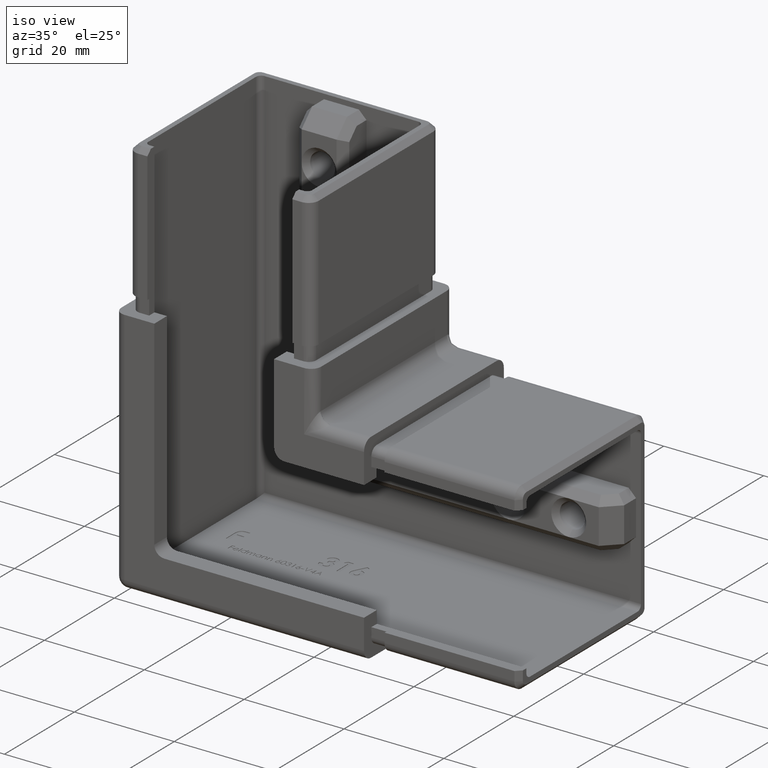
[diagram: clean part render]
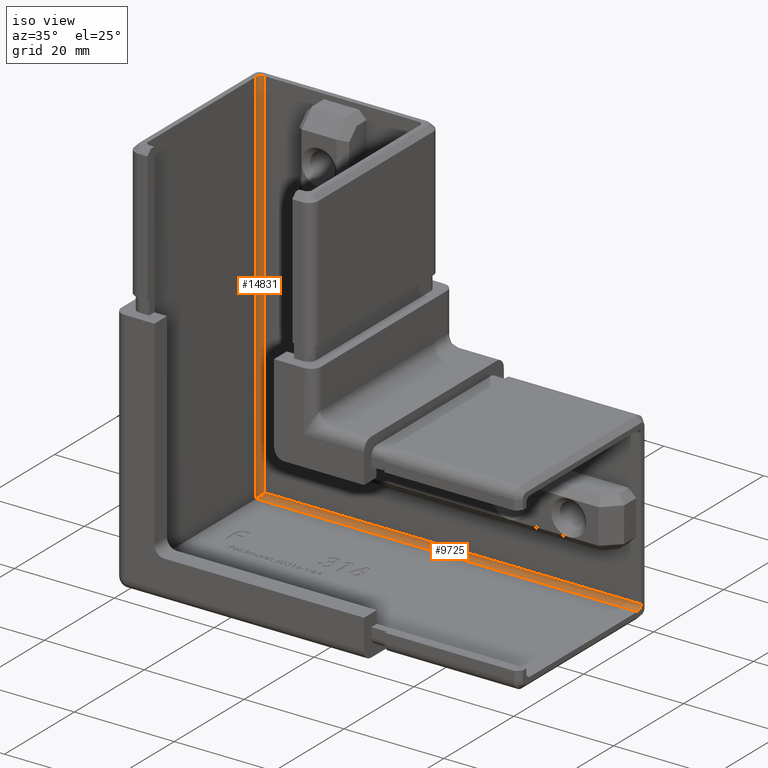
[diagram: same view with one multi-face feature highlighted, each face labeled with its STEP entity id]
A machine part, iso view. The highlighted faces form ONE feature: a constant-radius fillet chain: 2 tangent blend faces with common blend radius 1 mm. The faces share edges in the B-rep.
Their STEP definitions:
[1] entity #9725 (Cylinder):
#227 = EDGE_LOOP ( 'NONE', ( #14699, #7721, #12829, #18084 ) ) ;
#880 = DIRECTION ( 'NONE',  ( 0.000000000000000000, 0.000000000000000000, 1.000000000000000000 ) ) ;
#1062 = CARTESIAN_POINT ( 'NONE',  ( 60.00000000000000000, -4.599999999999998757, -15.40000000000003055 ) ) ;
#1257 = VERTEX_POINT ( 'NONE', #16794 ) ;
#2276 = VERTEX_POINT ( 'NONE', #4150 ) ;
#2345 = CARTESIAN_POINT ( 'NONE',  ( -22.10000000000000142, -3.599999999999999645, -15.39999999999999325 ) ) ;
#3325 = CYLINDRICAL_SURFACE ( 'NONE', #18089, 0.9999999999999991118 ) ;
#4150 = CARTESIAN_POINT ( 'NONE',  ( -16.40000000000000568, -4.600000000000006750, -16.39999999999999858 ) ) ;
#4507 = CARTESIAN_POINT ( 'NONE',  ( -15.39999999999999503, -3.599999999999999645, -15.39999999999998970 ) ) ;
#4647 = DIRECTION ( 'NONE',  ( 1.000000000000000000, 0.000000000000000000, 0.000000000000000000 ) ) ;
#5176 = LINE ( 'NONE', #2345, #9898 ) ;
#5433 = CARTESIAN_POINT ( 'NONE',  ( -16.40000000000000568, -4.014213562373093680, -16.40000000000000924 ) ) ;
#6817 = CARTESIAN_POINT ( 'NONE',  ( -15.98578643762690454, -3.599999999999993872, -15.98578643762690454 ) ) ;
#7070 = DIRECTION ( 'NONE',  ( 1.000000000000000000, 0.000000000000000000, -4.440892098500625176E-16 ) ) ;
#7412 = EDGE_CURVE ( 'NONE', #2276, #10644, #10540, .T. ) ;
#7721 = ORIENTED_EDGE ( 'NONE', *, *, #9861, .T. ) ;
#8018 = VERTEX_POINT ( 'NONE', #8753 ) ;
#8208 = DIRECTION ( 'NONE',  ( 1.000000000000000000, 0.000000000000000000, 0.000000000000000000 ) ) ;
#8753 = CARTESIAN_POINT ( 'NONE',  ( 60.00000000000000000, -4.600000000000006750, -16.40000000000003055 ) ) ;
#9186 = DIRECTION ( 'NONE',  ( 0.000000000000000000, 0.000000000000000000, -1.000000000000000000 ) ) ;
#9443 = DIRECTION ( 'NONE',  ( 1.000000000000000000, 0.000000000000000000, 0.000000000000000000 ) ) ;
#9725 = ADVANCED_FACE ( 'NONE', ( #16476 ), #3325, .F. ) ;
#9861 = EDGE_CURVE ( 'NONE', #2276, #8018, #11306, .T. ) ;
#9898 = VECTOR ( 'NONE', #8208, 1000.000000000000000 ) ;
#10351 = EDGE_CURVE ( 'NONE', #10644, #1257, #5176, .T. ) ;
#10540 =( BOUNDED_CURVE ( )  B_SPLINE_CURVE ( 3, ( #14369, #5433, #6817, #15934 ),
 .UNSPECIFIED., .F., .F. ) 
 B_SPLINE_CURVE_WITH_KNOTS ( ( 4, 4 ),
 ( -7.993605777301127091E-15, 1.570796326794906994 ),
 .UNSPECIFIED. ) 
 CURVE ( )  GEOMETRIC_REPRESENTATION_ITEM ( )  RATIONAL_B_SPLINE_CURVE ( ( 1.000000000000000000, 0.8047378541243606076, 0.8047378541243606076, 1.000000000000000000 ) ) 
 REPRESENTATION_ITEM ( '' )  );
#10644 = VERTEX_POINT ( 'NONE', #4507 ) ;
#11306 = LINE ( 'NONE', #16855, #12012 ) ;
#11480 = AXIS2_PLACEMENT_3D ( 'NONE', #1062, #7070, #880 ) ;
#12012 = VECTOR ( 'NONE', #9443, 1000.000000000000000 ) ;
#12829 = ORIENTED_EDGE ( 'NONE', *, *, #15537, .T. ) ;
#14369 = CARTESIAN_POINT ( 'NONE',  ( -16.40000000000000568, -4.600000000000006750, -16.39999999999999858 ) ) ;
#14699 = ORIENTED_EDGE ( 'NONE', *, *, #7412, .F. ) ;
#15537 = EDGE_CURVE ( 'NONE', #8018, #1257, #16765, .T. ) ;
#15934 = CARTESIAN_POINT ( 'NONE',  ( -15.39999999999999503, -3.599999999999999645, -15.39999999999998970 ) ) ;
#16476 = FACE_OUTER_BOUND ( 'NONE', #227, .T. ) ;
#16765 = CIRCLE ( 'NONE', #11480, 0.9999999999999991118 ) ;
#16794 = CARTESIAN_POINT ( 'NONE',  ( 60.00000000000000000, -3.600000000000000089, -15.40000000000002167 ) ) ;
#16855 = CARTESIAN_POINT ( 'NONE',  ( -22.10000000000000142, -4.600000000000006750, -16.40000000000000213 ) ) ;
#17987 = CARTESIAN_POINT ( 'NONE',  ( -22.10000000000000142, -4.599999999999998757, -15.40000000000000213 ) ) ;
#18084 = ORIENTED_EDGE ( 'NONE', *, *, #10351, .F. ) ;
#18089 = AXIS2_PLACEMENT_3D ( 'NONE', #17987, #4647, #9186 ) ;
[2] entity #14831 (Cylinder):
#307 = DIRECTION ( 'NONE',  ( -1.000000000000000000, 0.000000000000000000, 0.000000000000000000 ) ) ;
#959 = AXIS2_PLACEMENT_3D ( 'NONE', #9246, #16656, #13506 ) ;
#1350 = CARTESIAN_POINT ( 'NONE',  ( -16.40000000000000213, -4.600000000000006750, 30.00000000000000000 ) ) ;
#2276 = VERTEX_POINT ( 'NONE', #4150 ) ;
#2398 = VECTOR ( 'NONE', #14842, 1000.000000000000000 ) ;
#3788 = CIRCLE ( 'NONE', #959, 0.9999999999999991118 ) ;
#3995 = ORIENTED_EDGE ( 'NONE', *, *, #4535, .T. ) ;
#4150 = CARTESIAN_POINT ( 'NONE',  ( -16.40000000000000568, -4.600000000000006750, -16.39999999999999858 ) ) ;
#4507 = CARTESIAN_POINT ( 'NONE',  ( -15.39999999999999503, -3.599999999999999645, -15.39999999999998970 ) ) ;
#4535 = EDGE_CURVE ( 'NONE', #14067, #2276, #11343, .T. ) ;
#5433 = CARTESIAN_POINT ( 'NONE',  ( -16.40000000000000568, -4.014213562373093680, -16.40000000000000924 ) ) ;
#5626 = LINE ( 'NONE', #13066, #11735 ) ;
#6006 = FACE_OUTER_BOUND ( 'NONE', #7468, .T. ) ;
#6817 = CARTESIAN_POINT ( 'NONE',  ( -15.98578643762690454, -3.599999999999993872, -15.98578643762690454 ) ) ;
#6941 = EDGE_CURVE ( 'NONE', #7203, #10644, #5626, .T. ) ;
#7203 = VERTEX_POINT ( 'NONE', #9182 ) ;
#7412 = EDGE_CURVE ( 'NONE', #2276, #10644, #10540, .T. ) ;
#7468 = EDGE_LOOP ( 'NONE', ( #3995, #7647, #9184, #14939 ) ) ;
#7647 = ORIENTED_EDGE ( 'NONE', *, *, #7412, .T. ) ;
#7965 = CARTESIAN_POINT ( 'NONE',  ( -15.40000000000000213, -4.599999999999998757, 30.00000000000000000 ) ) ;
#9182 = CARTESIAN_POINT ( 'NONE',  ( -15.39999999999999325, -3.600000000000000089, 60.00000000000000000 ) ) ;
#9184 = ORIENTED_EDGE ( 'NONE', *, *, #6941, .F. ) ;
#9246 = CARTESIAN_POINT ( 'NONE',  ( -15.40000000000000213, -4.599999999999998757, 60.00000000000000000 ) ) ;
#9466 = DIRECTION ( 'NONE',  ( 0.000000000000000000, 0.000000000000000000, -1.000000000000000000 ) ) ;
#9779 = EDGE_CURVE ( 'NONE', #14067, #7203, #3788, .T. ) ;
#10540 =( BOUNDED_CURVE ( )  B_SPLINE_CURVE ( 3, ( #14369, #5433, #6817, #15934 ),
 .UNSPECIFIED., .F., .F. ) 
 B_SPLINE_CURVE_WITH_KNOTS ( ( 4, 4 ),
 ( -7.993605777301127091E-15, 1.570796326794906994 ),
 .UNSPECIFIED. ) 
 CURVE ( )  GEOMETRIC_REPRESENTATION_ITEM ( )  RATIONAL_B_SPLINE_CURVE ( ( 1.000000000000000000, 0.8047378541243606076, 0.8047378541243606076, 1.000000000000000000 ) ) 
 REPRESENTATION_ITEM ( '' )  );
#10644 = VERTEX_POINT ( 'NONE', #4507 ) ;
#11343 = LINE ( 'NONE', #1350, #2398 ) ;
#11695 = AXIS2_PLACEMENT_3D ( 'NONE', #7965, #9466, #307 ) ;
#11735 = VECTOR ( 'NONE', #11802, 1000.000000000000000 ) ;
#11802 = DIRECTION ( 'NONE',  ( 0.000000000000000000, 0.000000000000000000, -1.000000000000000000 ) ) ;
#13066 = CARTESIAN_POINT ( 'NONE',  ( -15.39999999999999325, -3.599999999999999645, 30.00000000000000000 ) ) ;
#13506 = DIRECTION ( 'NONE',  ( 1.000000000000000000, 0.000000000000000000, 0.000000000000000000 ) ) ;
#13989 = CYLINDRICAL_SURFACE ( 'NONE', #11695, 0.9999999999999991118 ) ;
#14067 = VERTEX_POINT ( 'NONE', #16338 ) ;
#14369 = CARTESIAN_POINT ( 'NONE',  ( -16.40000000000000568, -4.600000000000006750, -16.39999999999999858 ) ) ;
#14831 = ADVANCED_FACE ( 'NONE', ( #6006 ), #13989, .F. ) ;
#14842 = DIRECTION ( 'NONE',  ( 0.000000000000000000, 0.000000000000000000, -1.000000000000000000 ) ) ;
#14939 = ORIENTED_EDGE ( 'NONE', *, *, #9779, .F. ) ;
#15934 = CARTESIAN_POINT ( 'NONE',  ( -15.39999999999999503, -3.599999999999999645, -15.39999999999998970 ) ) ;
#16338 = CARTESIAN_POINT ( 'NONE',  ( -16.40000000000000213, -4.600000000000006750, 60.00000000000000000 ) ) ;
#16656 = DIRECTION ( 'NONE',  ( -0.000000000000000000, -0.000000000000000000, -1.000000000000000000 ) ) ;